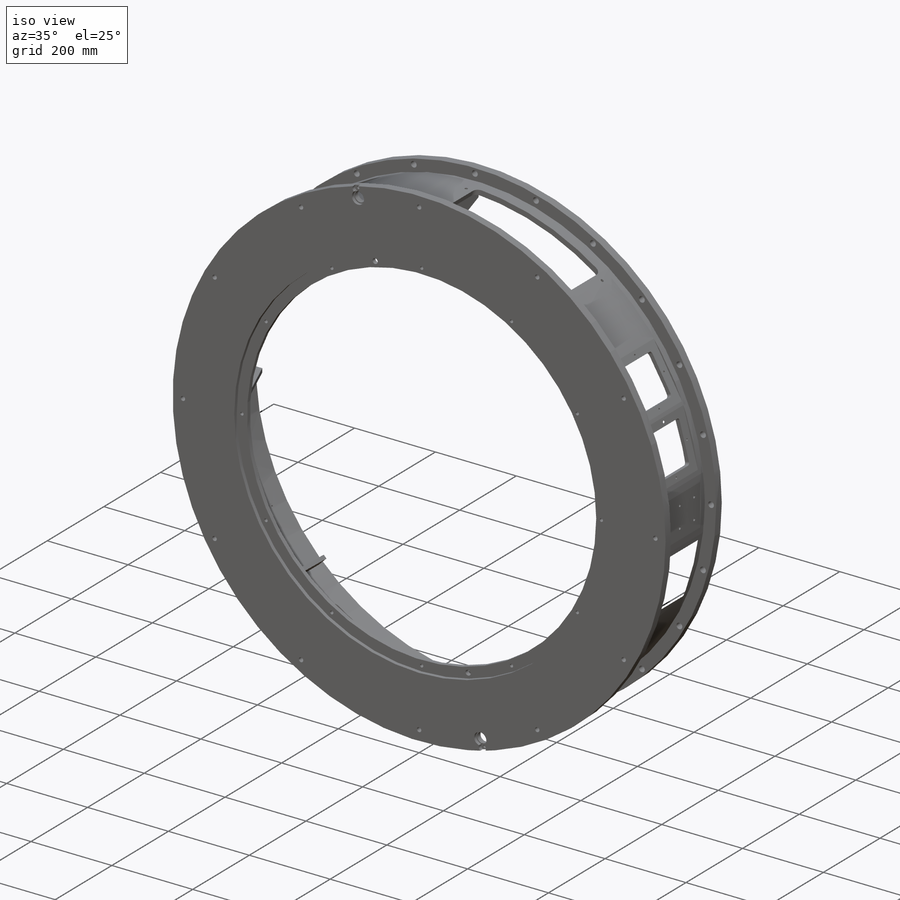
[diagram: iso view]
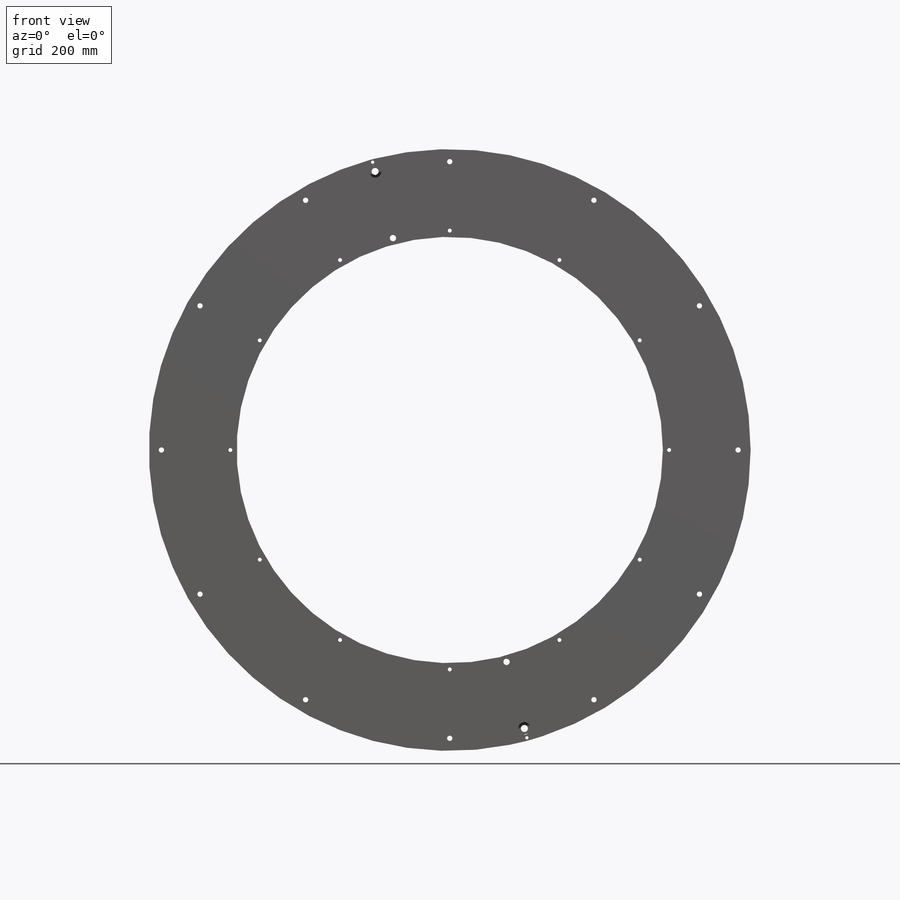
[diagram: front view]
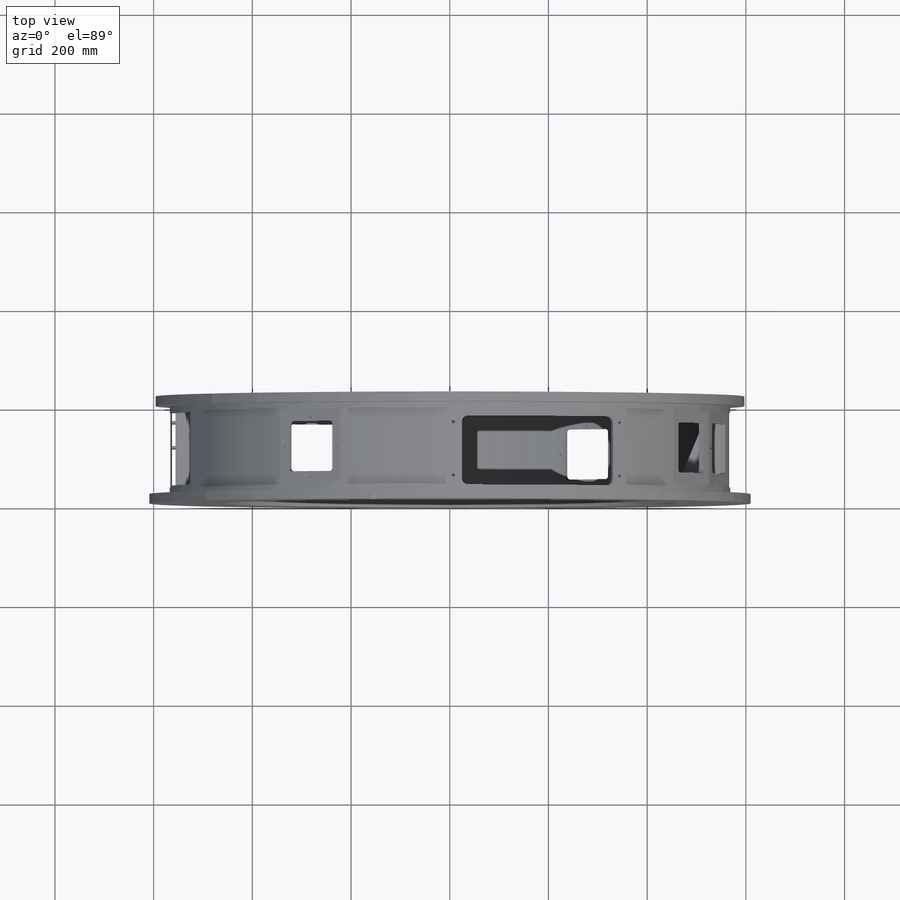
[diagram: top view]
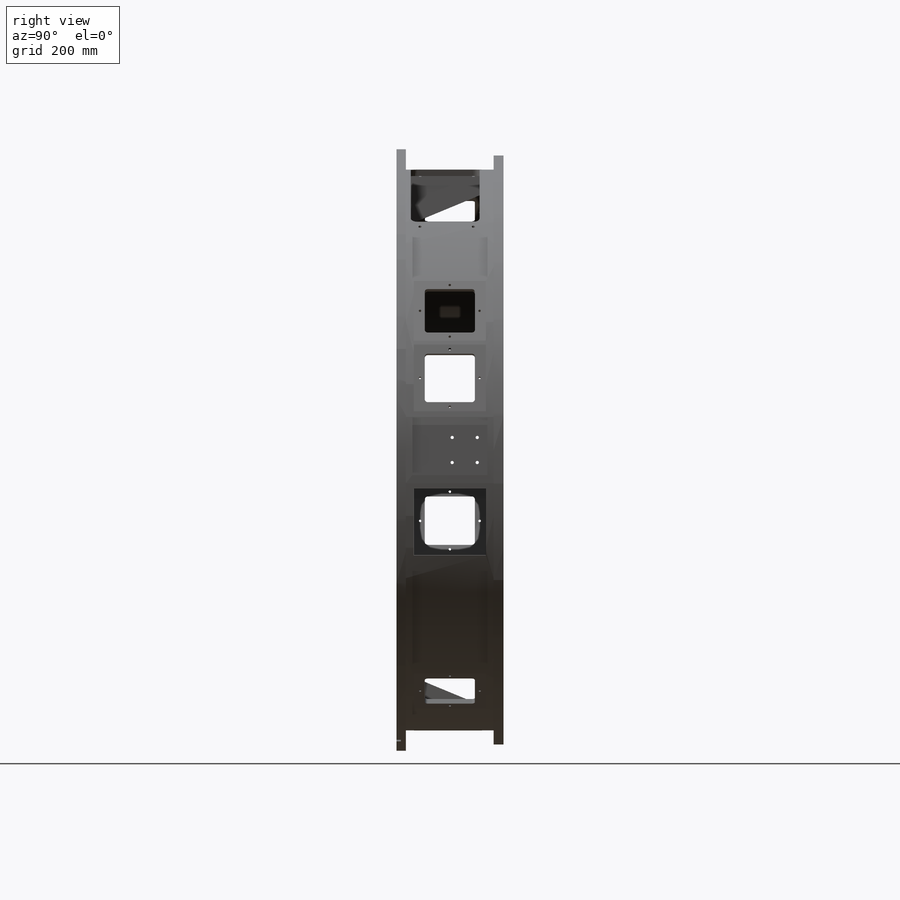
[diagram: right view]
SOLIDWORKS PART (.sldprt)
format: sldprt  version: not decoded by parser v0  size: 2,204,160 bytes
history: native  units: mm
features: sketch x40, pattern_circular x15, thread x11, hole x9, cut_extrude x5, extrude x2, material x1, revolve x1 (+13 scaffold rows collapsed)
feature tree (97):
  scaffold x13  (default folders/planes/origin — collapsed)
  material  "6061 Alloy"
  sketch  "Sketch1"  dims[D1=19.05mm D2=152.4mm D3=8.89mm D4=25.4mm D5=12.7mm D6=216.662mm D7=177.8mm D8=41.275mm D9=123.825mm D10=~293.718696mm D11=~293.718696mm]
  revolve  "Revolve1"  Angle=360deg
  hole  "1/2-13 Tapped Hole1"  Diameter=10.71626mm Depth=216.662mm
  sketch  "3DSketch1"
  sketch  "Sketch2"  dims[hole-wizard template sketch: 60 standard entries collapsed; hole parameters kept: c18.Thru Tap Drill Depth=216.662mm]
  thread  "Hole Thread1"  Diameter=12.7mm  [1 undecoded]
  pattern_circular  "CirPattern1"  Count=12 Angle=360deg
  sketch  "Sketch4"
  hole  "3/8-16 Tapped Hole1"  Diameter=7.9375mm Depth=207.772mm
  sketch  "3DSketch3"
  sketch  "Sketch5"  dims[hole-wizard template sketch: 60 standard entries collapsed; hole parameters kept: c18.Thru Tap Drill Depth=207.772mm]
  thread  "Hole Thread2"  Diameter=9.525mm  [1 undecoded]
  pattern_circular  "CirPattern2"  Count=12 Angle=360deg
  sketch  "Sketch8"
  hole  "9/16 (0.5625) Diameter Hole1"  Diameter=14.2875mm Depth=19.813mm
  sketch  "3DSketch5"
  sketch  "Sketch9"  dims[hole-wizard template sketch: 60 standard entries collapsed; hole parameters kept: c18.Thru Hole Depth=19.813mm]
  pattern_circular  "CirPattern3"  Count=24 Angle=360deg
  sketch  "Sketch10"  dims[c1.D1=~642.041416mm c2.D1=15.0deg c2.D2=19.4564mm]
  hole  "Hole1"  Diameter=25.4mm Depth=19.051mm
  sketch  "3DSketch6"
  sketch  "Sketch11"  dims[Diameter=25.4mm Depth=19.051mm C-Bore Diameter=30.1752mm C-Bore Depth=7.5184mm]
  hole  "5/16-18 Tapped Hole1"  Diameter=6.5278mm Depth=216.662mm
  sketch  "3DSketch7"
  sketch  "Sketch12"  dims[hole-wizard template sketch: 59 standard entries collapsed; hole parameters kept: c18.Thru Tap Drill Dia.=6.5278mm c18.Thru Tap Drill Depth=216.662mm]
  thread  "Hole Thread3"  Diameter=7.9375mm  [1 undecoded]
  hole  "Hole2"  Diameter=17.4752mm Depth=8.6868mm
  sketch  "3DSketch8"
  sketch  "Sketch13"  dims[Diameter=17.4752mm Depth=8.6868mm]
  pattern_circular  "CirPattern4"  Count=2 Angle=360deg
  sketch  "Sketch14"  dims[D1=444.5mm]
  hole  "1/2 (0.5) Diameter Hole1"  Diameter=12.7mm Depth=207.772mm
  sketch  "3DSketch9"
  sketch  "Sketch15"  dims[hole-wizard template sketch: 60 standard entries collapsed; hole parameters kept: c18.Thru Hole Depth=207.772mm]
  pattern_circular  "CirPattern5"  Count=2 Angle=360deg
  sketch  "Sketch17"  dims[c1.D1=101.6mm c1.D2=25.4mm c1.D3=184.15mm c1.D4=12.7mm c1.D5=~8.980256mm c2.D5=45.0deg c2.D6=184.15mm]
  extrude  "Extrude1"  Depth=4.7625mm
  pattern_circular  "CirPattern6"  Count=2 Angle=360deg
  pattern_circular  "CirPattern7"  Count=3 Angle=90deg
  sketch  "Sketch18"
  sketch  "3DSketch11"
  sketch  "Sketch20"  dims[c1.D1=25.4mm c1.D2=50.8mm c1.D3=184.15mm c1.D4=12.7mm c1.D5=1111.25mm c2.D5=90.0deg c3.D5=~6.047662mm c4.D5=45.0deg]
  extrude  "Extrude6"  Depth=4.7625mm
  pattern_circular  "CirPattern8"  Count=2 Angle=360deg
  sketch  "Sketch21"  dims[c1.D1=~634.78949mm c2.D1=19.0deg]
  sketch  "3DSketch13"
  sketch  "Sketch22"  dims[D5=12.7mm D1=323.85mm D2=161.925mm D3=139.7mm D4=9.652mm]
  cut_extrude  "Cut-Extrude1"  Depth=50.8mm
  sketch  "Sketch23"  dims[D5=~17.153419mm D1=28.702mm D2=177.8mm D3=107.95mm D4=177.8mm]
  cut_extrude  "Cut-Extrude3"  Depth=43.18mm
  sketch  "Sketch26"  dims[D1=101.6mm D2=50.8mm]
  sketch  "3DSketch15"
  sketch  "Sketch27"  dims[D1=152.4mm D2=12.7mm D3=127.0mm D4=63.5mm]
  cut_extrude  "Cut-Extrude4"  Depth=30.48mm
  sketch  "Sketch28"  dims[D1=50.8mm D2=93.6625mm D3=25.4mm D4=25.4mm]
  hole  "5/16-18 Tapped Hole2"  Diameter=6.5278mm Depth=30.734mm
  sketch  "3DSketch16"
  sketch  "Sketch29"  dims[hole-wizard template sketch: 47 standard entries collapsed; hole parameters kept: c15.Tap Drill Depth=30.734mm c15.D3=~14.816244mm c15.Drill Angle=118.0deg]
  thread  "Hole Thread4"  Diameter=11.164913mm  [1 undecoded]
  thread  "Hole Thread5"  Diameter=11.164913mm  [1 undecoded]
  thread  "Hole Thread6"  Diameter=11.164913mm  [1 undecoded]
  thread  "Hole Thread7"  Diameter=11.164913mm  [1 undecoded]
  pattern_circular  "CirPattern9"  Count=2 Angle=360deg
  pattern_circular  "CirPattern10"  Count=2 Angle=360deg
  sketch  "Sketch30"  dims[c1.D1=~764.99822mm c2.D1=60.0deg c2.D2=69.85mm]
  sketch  "3DSketch17"
  sketch  "Sketch31"  dims[D1=152.4mm D2=146.05mm D3=15.875mm D4=76.2mm]
  cut_extrude  "Cut-Extrude6"  Depth=7.62mm
  sketch  "Sketch32"  dims[D5=6.35mm D1=101.6mm D2=101.6mm D3=38.1mm D4=50.8mm]
  cut_extrude  "Cut-Extrude7"  Depth=12.7mm
  sketch  "Sketch33"  dims[D1=60.325mm D2=60.325mm D3=88.9mm D4=88.9mm D5=120.65mm D6=28.575mm]
  hole  "1/4-20 Tapped Hole2"  Diameter=5.1054mm Depth=24.13mm
  sketch  "3DSketch18"
  sketch  "Sketch34"  dims[hole-wizard template sketch: 47 standard entries collapsed; hole parameters kept: c15.Tap Drill Depth=24.13mm c15.D3=~14.816244mm c15.Drill Angle=118.0deg]
  thread  "Hole Thread8"  Diameter=8.397072mm  [1 undecoded]
  thread  "Hole Thread9"  Diameter=11.960472mm  [1 undecoded]
  thread  "Hole Thread10"  Diameter=8.397072mm  [1 undecoded]
  thread  "Hole Thread11"  Diameter=11.960472mm  [1 undecoded]
  pattern_circular  "CirPattern11"  Count=4 Angle=360deg
  pattern_circular  "CirPattern12"  Count=2 Angle=15deg
  pattern_circular  "CirPattern13"  Count=2 Angle=45deg
  pattern_circular  "CirPattern14"  Count=2 Angle=165deg
  pattern_circular  "CirPattern15"  Count=2 Angle=135deg
decode coverage: 67 of 83 modeling features carry decoded parameters
note: ~ marks probable driven/reference dimensions
note: 11 parameter values undecoded
summary: Diameter pulled from absorbed wizard sketch
note: suppression state not decoded; provenance and decode notes live in map.json
